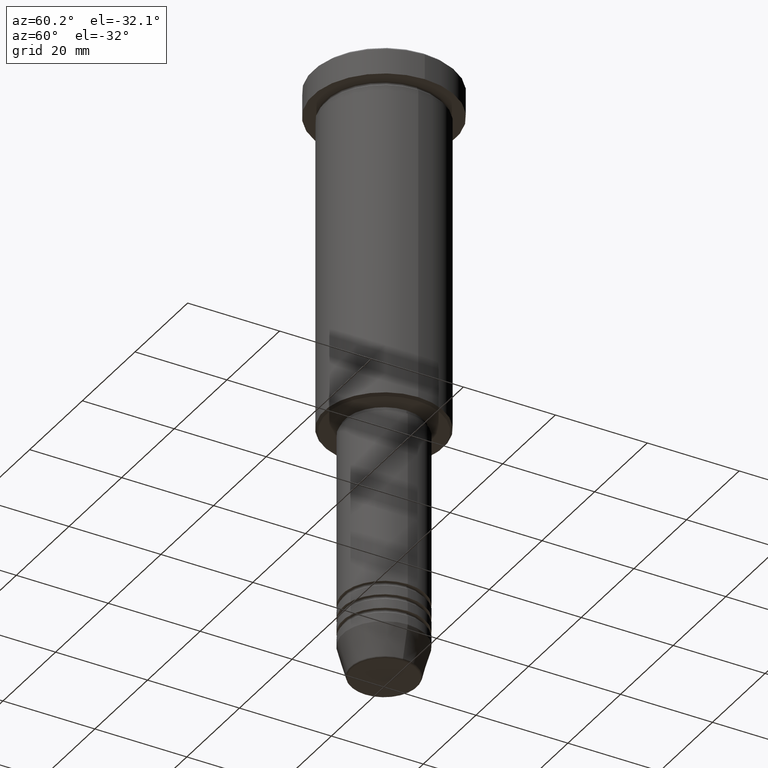
[diagram: clean part render]
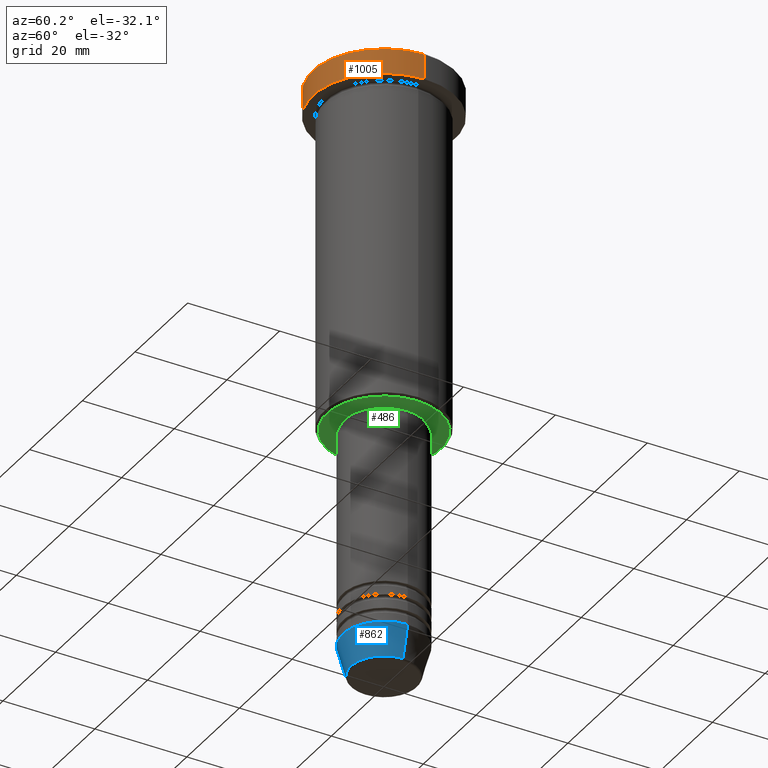
[diagram: same view with three faces highlighted in distinct colors, each labeled with its STEP entity id]
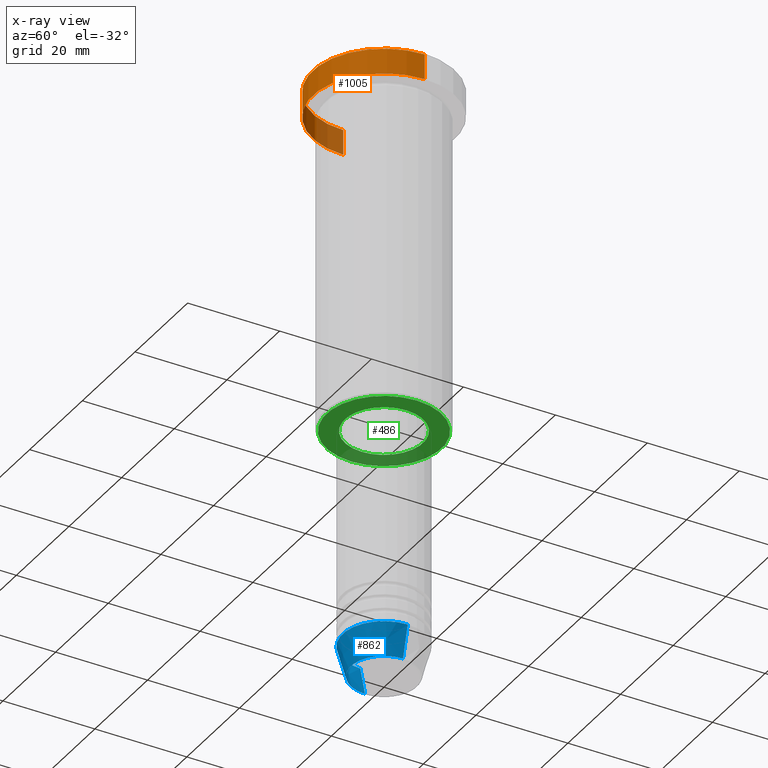
[diagram: x-ray of the same camera — body ghosted, the three highlighted faces saturated]
A machine part, auxiliary view with three faces highlighted in distinct colors.
The next image is the same camera in x-ray (body ghosted, the three faces saturated) — at least one of them is partly hidden behind the body in this view.
Their STEP definitions:

[orange] entity #1005 — the highlighted cylindrical surface (partial cylindrical patch) has radius 15.5 mm, axis along (-0, -0, 1).
#6 = CARTESIAN_POINT ( 'NONE',  ( 0.000000000000000000, 0.000000000000000000, -5.999999999999995559 ) ) ;
#22 = DIRECTION ( 'NONE',  ( 1.000000000000000000, 0.000000000000000000, 0.000000000000000000 ) ) ;
#71 = AXIS2_PLACEMENT_3D ( 'NONE', #6, #114, #22 ) ;
#112 = AXIS2_PLACEMENT_3D ( 'NONE', #846, #325, #503 ) ;
#114 = DIRECTION ( 'NONE',  ( -0.000000000000000000, -0.000000000000000000, 1.000000000000000000 ) ) ;
#120 = VERTEX_POINT ( 'NONE', #764 ) ;
#134 = CYLINDRICAL_SURFACE ( 'NONE', #112, 15.50000000000000000 ) ;
#163 = EDGE_CURVE ( 'NONE', #770, #120, #1129, .T. ) ;
#189 = VECTOR ( 'NONE', #307, 1000.000000000000000 ) ;
#234 = DIRECTION ( 'NONE',  ( -0.000000000000000000, -0.000000000000000000, 1.000000000000000000 ) ) ;
#235 = CARTESIAN_POINT ( 'NONE',  ( -15.50000000000000000, 1.898202538678397557E-15, -0.4999999999999709677 ) ) ;
#297 = VERTEX_POINT ( 'NONE', #235 ) ;
#307 = DIRECTION ( 'NONE',  ( -0.000000000000000000, -0.000000000000000000, 1.000000000000000000 ) ) ;
#313 = DIRECTION ( 'NONE',  ( 0.000000000000000000, 0.000000000000000000, -1.000000000000000000 ) ) ;
#323 = CIRCLE ( 'NONE', #814, 15.50000000000000000 ) ;
#325 = DIRECTION ( 'NONE',  ( -0.000000000000000000, -0.000000000000000000, 1.000000000000000000 ) ) ;
#503 = DIRECTION ( 'NONE',  ( 1.000000000000000000, 0.000000000000000000, 0.000000000000000000 ) ) ;
#514 = ORIENTED_EDGE ( 'NONE', *, *, #163, .T. ) ;
#585 = FACE_OUTER_BOUND ( 'NONE', #1182, .T. ) ;
#606 = EDGE_CURVE ( 'NONE', #120, #297, #323, .T. ) ;
#626 = CIRCLE ( 'NONE', #71, 15.50000000000000000 ) ;
#637 = EDGE_CURVE ( 'NONE', #785, #297, #1049, .T. ) ;
#678 = CARTESIAN_POINT ( 'NONE',  ( -15.50000000000000000, 1.898202538678397557E-15, 0.000000000000000000 ) ) ;
#681 = CARTESIAN_POINT ( 'NONE',  ( 0.000000000000000000, 0.000000000000000000, -0.4999999999999709677 ) ) ;
#764 = CARTESIAN_POINT ( 'NONE',  ( 15.50000000000000000, 0.000000000000000000, -0.4999999999999709677 ) ) ;
#770 = VERTEX_POINT ( 'NONE', #899 ) ;
#785 = VERTEX_POINT ( 'NONE', #977 ) ;
#814 = AXIS2_PLACEMENT_3D ( 'NONE', #681, #313, #1136 ) ;
#846 = CARTESIAN_POINT ( 'NONE',  ( 0.000000000000000000, 0.000000000000000000, 0.000000000000000000 ) ) ;
#899 = CARTESIAN_POINT ( 'NONE',  ( 15.50000000000000000, 0.000000000000000000, -5.999999999999995559 ) ) ;
#932 = EDGE_CURVE ( 'NONE', #785, #770, #626, .T. ) ;
#941 = CARTESIAN_POINT ( 'NONE',  ( 15.50000000000000000, 0.000000000000000000, 0.000000000000000000 ) ) ;
#962 = ORIENTED_EDGE ( 'NONE', *, *, #606, .T. ) ;
#977 = CARTESIAN_POINT ( 'NONE',  ( -15.50000000000000000, 1.898202538678397557E-15, -5.999999999999995559 ) ) ;
#1005 = ADVANCED_FACE ( 'NONE', ( #585 ), #134, .T. ) ;
#1019 = ORIENTED_EDGE ( 'NONE', *, *, #932, .T. ) ;
#1049 = LINE ( 'NONE', #678, #1179 ) ;
#1129 = LINE ( 'NONE', #941, #189 ) ;
#1136 = DIRECTION ( 'NONE',  ( 1.000000000000000000, 0.000000000000000000, 0.000000000000000000 ) ) ;
#1175 = ORIENTED_EDGE ( 'NONE', *, *, #637, .F. ) ;
#1179 = VECTOR ( 'NONE', #234, 1000.000000000000000 ) ;
#1182 = EDGE_LOOP ( 'NONE', ( #1175, #1019, #514, #962 ) ) ;

[blue] entity #862 — the highlighted conical surface has half-angle 15 deg.
#24 = EDGE_CURVE ( 'NONE', #710, #543, #369, .T. ) ;
#54 = CARTESIAN_POINT ( 'NONE',  ( -9.000000000000000000, 1.102182119232617714E-15, -124.0000000000000000 ) ) ;
#72 = EDGE_CURVE ( 'NONE', #573, #543, #243, .T. ) ;
#109 = ORIENTED_EDGE ( 'NONE', *, *, #879, .T. ) ;
#111 = DIRECTION ( 'NONE',  ( 0.2588190451025213501, 0.000000000000000000, 0.9659258262890680902 ) ) ;
#127 = CONICAL_SURFACE ( 'NONE', #581, 9.000000000000000000, 0.2617993877991500740 ) ;
#162 = VERTEX_POINT ( 'NONE', #1123 ) ;
#213 = DIRECTION ( 'NONE',  ( 1.000000000000000000, 0.000000000000000000, 0.000000000000000000 ) ) ;
#243 = CIRCLE ( 'NONE', #902, 9.000000000000000000 ) ;
#249 = CARTESIAN_POINT ( 'NONE',  ( 7.223655072137188604, 0.000000000000000000, -130.6294095225512706 ) ) ;
#273 = DIRECTION ( 'NONE',  ( -0.000000000000000000, -0.000000000000000000, 1.000000000000000000 ) ) ;
#277 = CARTESIAN_POINT ( 'NONE',  ( 9.000000000000000000, 0.000000000000000000, -124.0000000000000000 ) ) ;
#320 = VECTOR ( 'NONE', #111, 1000.000000000000000 ) ;
#354 = ORIENTED_EDGE ( 'NONE', *, *, #72, .F. ) ;
#358 = LINE ( 'NONE', #987, #1142 ) ;
#369 = LINE ( 'NONE', #277, #320 ) ;
#383 = FACE_OUTER_BOUND ( 'NONE', #908, .T. ) ;
#466 = DIRECTION ( 'NONE',  ( -0.000000000000000000, -0.000000000000000000, 1.000000000000000000 ) ) ;
#471 = CARTESIAN_POINT ( 'NONE',  ( 0.000000000000000000, 0.000000000000000000, -130.6294095225512706 ) ) ;
#475 = DIRECTION ( 'NONE',  ( -0.000000000000000000, -0.000000000000000000, 1.000000000000000000 ) ) ;
#512 = CARTESIAN_POINT ( 'NONE',  ( 9.000000000000000000, 0.000000000000000000, -124.0000000000000000 ) ) ;
#543 = VERTEX_POINT ( 'NONE', #512 ) ;
#573 = VERTEX_POINT ( 'NONE', #54 ) ;
#581 = AXIS2_PLACEMENT_3D ( 'NONE', #1116, #475, #213 ) ;
#684 = CIRCLE ( 'NONE', #1044, 7.223655072137188604 ) ;
#710 = VERTEX_POINT ( 'NONE', #249 ) ;
#753 = EDGE_CURVE ( 'NONE', #162, #573, #358, .T. ) ;
#842 = DIRECTION ( 'NONE',  ( 1.000000000000000000, 0.000000000000000000, 0.000000000000000000 ) ) ;
#862 = ADVANCED_FACE ( 'NONE', ( #383 ), #127, .T. ) ;
#879 = EDGE_CURVE ( 'NONE', #162, #710, #684, .T. ) ;
#902 = AXIS2_PLACEMENT_3D ( 'NONE', #1085, #273, #1001 ) ;
#908 = EDGE_LOOP ( 'NONE', ( #1058, #109, #976, #354 ) ) ;
#976 = ORIENTED_EDGE ( 'NONE', *, *, #24, .T. ) ;
#987 = CARTESIAN_POINT ( 'NONE',  ( -9.000000000000000000, 1.102182119232617714E-15, -124.0000000000000000 ) ) ;
#1001 = DIRECTION ( 'NONE',  ( 1.000000000000000000, 0.000000000000000000, 0.000000000000000000 ) ) ;
#1044 = AXIS2_PLACEMENT_3D ( 'NONE', #471, #466, #842 ) ;
#1058 = ORIENTED_EDGE ( 'NONE', *, *, #753, .F. ) ;
#1073 = DIRECTION ( 'NONE',  ( -0.2588190451025213501, 3.169619151431772337E-17, 0.9659258262890680902 ) ) ;
#1085 = CARTESIAN_POINT ( 'NONE',  ( 0.000000000000000000, 0.000000000000000000, -124.0000000000000000 ) ) ;
#1116 = CARTESIAN_POINT ( 'NONE',  ( 0.000000000000000000, 0.000000000000000000, -124.0000000000000000 ) ) ;
#1123 = CARTESIAN_POINT ( 'NONE',  ( -7.223655072137189492, 9.934123627281765110E-16, -130.6294095225512706 ) ) ;
#1142 = VECTOR ( 'NONE', #1073, 1000.000000000000000 ) ;

[green] entity #486 — the highlighted planar face has unit normal (0, 0, -1).
#2 = DIRECTION ( 'NONE',  ( 1.000000000000000000, 0.000000000000000000, 0.000000000000000000 ) ) ;
#3 = FACE_BOUND ( 'NONE', #288, .T. ) ;
#23 = VERTEX_POINT ( 'NONE', #373 ) ;
#33 = AXIS2_PLACEMENT_3D ( 'NONE', #586, #768, #1131 ) ;
#34 = DIRECTION ( 'NONE',  ( 0.000000000000000000, 0.000000000000000000, -1.000000000000000000 ) ) ;
#50 = AXIS2_PLACEMENT_3D ( 'NONE', #266, #615, #1158 ) ;
#128 = AXIS2_PLACEMENT_3D ( 'NONE', #489, #34, #409 ) ;
#144 = AXIS2_PLACEMENT_3D ( 'NONE', #372, #634, #468 ) ;
#173 = CIRCLE ( 'NONE', #50, 12.49999999999998401 ) ;
#178 = VERTEX_POINT ( 'NONE', #754 ) ;
#266 = CARTESIAN_POINT ( 'NONE',  ( 0.000000000000000000, 0.000000000000000000, -75.99999999999998579 ) ) ;
#288 = EDGE_LOOP ( 'NONE', ( #314, #786 ) ) ;
#295 = PLANE ( 'NONE',  #144 ) ;
#314 = ORIENTED_EDGE ( 'NONE', *, *, #629, .T. ) ;
#331 = ORIENTED_EDGE ( 'NONE', *, *, #1102, .T. ) ;
#341 = ORIENTED_EDGE ( 'NONE', *, *, #1133, .T. ) ;
#372 = CARTESIAN_POINT ( 'NONE',  ( 0.000000000000000000, 13.00000000000000000, -75.99999999999998579 ) ) ;
#373 = CARTESIAN_POINT ( 'NONE',  ( -12.49999999999998401, 1.561424668912874125E-15, -75.99999999999998579 ) ) ;
#409 = DIRECTION ( 'NONE',  ( -1.000000000000000000, 0.000000000000000000, 0.000000000000000000 ) ) ;
#420 = CIRCLE ( 'NONE', #128, 12.49999999999998401 ) ;
#458 = VERTEX_POINT ( 'NONE', #898 ) ;
#460 = CIRCLE ( 'NONE', #625, 8.499999999999998224 ) ;
#468 = DIRECTION ( 'NONE',  ( -1.000000000000000000, 0.000000000000000000, -0.000000000000000000 ) ) ;
#486 = ADVANCED_FACE ( 'NONE', ( #998, #3 ), #295, .T. ) ;
#489 = CARTESIAN_POINT ( 'NONE',  ( 0.000000000000000000, 0.000000000000000000, -75.99999999999998579 ) ) ;
#540 = CARTESIAN_POINT ( 'NONE',  ( 0.000000000000000000, 0.000000000000000000, -75.99999999999998579 ) ) ;
#586 = CARTESIAN_POINT ( 'NONE',  ( 0.000000000000000000, 0.000000000000000000, -75.99999999999998579 ) ) ;
#603 = VERTEX_POINT ( 'NONE', #777 ) ;
#615 = DIRECTION ( 'NONE',  ( 0.000000000000000000, 0.000000000000000000, -1.000000000000000000 ) ) ;
#625 = AXIS2_PLACEMENT_3D ( 'NONE', #540, #897, #2 ) ;
#629 = EDGE_CURVE ( 'NONE', #178, #458, #980, .T. ) ;
#634 = DIRECTION ( 'NONE',  ( 0.000000000000000000, 0.000000000000000000, -1.000000000000000000 ) ) ;
#754 = CARTESIAN_POINT ( 'NONE',  ( 8.499999999999998224, 0.000000000000000000, -75.99999999999998579 ) ) ;
#756 = EDGE_CURVE ( 'NONE', #458, #178, #460, .T. ) ;
#768 = DIRECTION ( 'NONE',  ( -0.000000000000000000, -0.000000000000000000, 1.000000000000000000 ) ) ;
#777 = CARTESIAN_POINT ( 'NONE',  ( 12.49999999999998401, 0.000000000000000000, -75.99999999999998579 ) ) ;
#786 = ORIENTED_EDGE ( 'NONE', *, *, #756, .T. ) ;
#812 = EDGE_LOOP ( 'NONE', ( #341, #331 ) ) ;
#897 = DIRECTION ( 'NONE',  ( -0.000000000000000000, -0.000000000000000000, 1.000000000000000000 ) ) ;
#898 = CARTESIAN_POINT ( 'NONE',  ( -8.499999999999998224, 1.040949779275249943E-15, -75.99999999999998579 ) ) ;
#980 = CIRCLE ( 'NONE', #33, 8.499999999999998224 ) ;
#998 = FACE_OUTER_BOUND ( 'NONE', #812, .T. ) ;
#1102 = EDGE_CURVE ( 'NONE', #23, #603, #420, .T. ) ;
#1131 = DIRECTION ( 'NONE',  ( 1.000000000000000000, 0.000000000000000000, 0.000000000000000000 ) ) ;
#1133 = EDGE_CURVE ( 'NONE', #603, #23, #173, .T. ) ;
#1158 = DIRECTION ( 'NONE',  ( -1.000000000000000000, 0.000000000000000000, 0.000000000000000000 ) ) ;